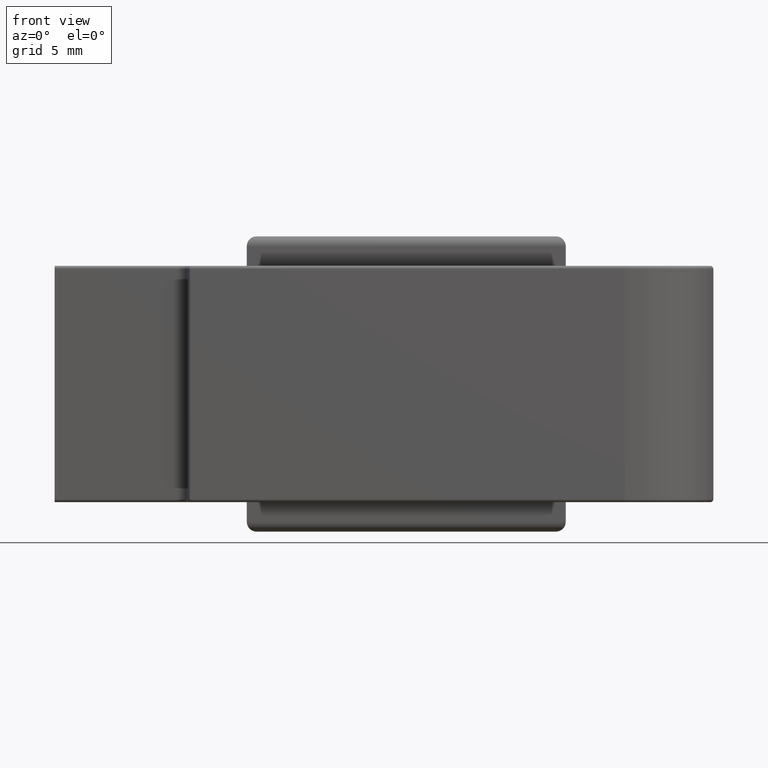
[diagram: clean part render]
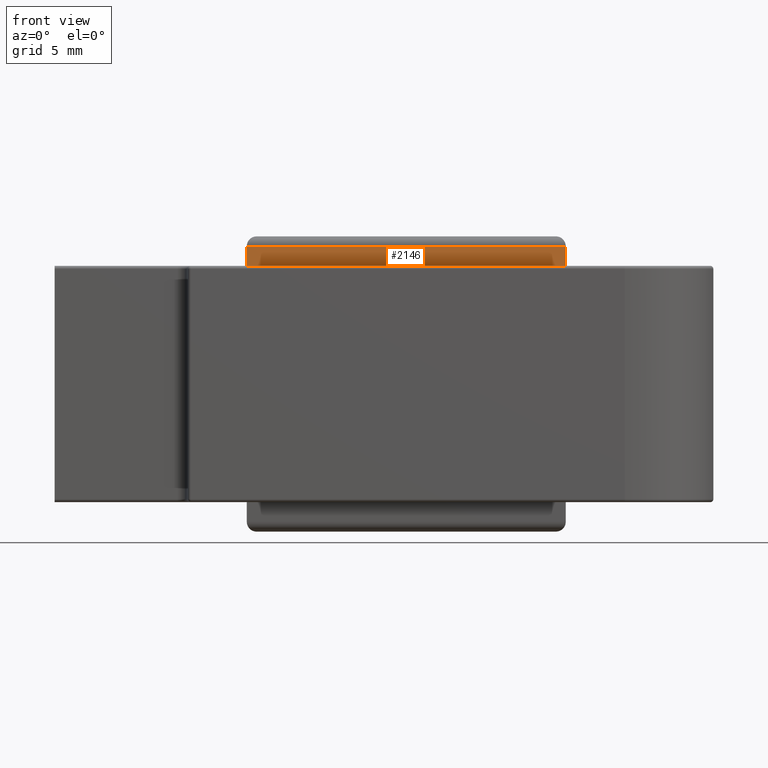
[diagram: same view with one face highlighted and labeled with its STEP entity id]
A machine part, front view. The second image highlights one B-rep face of the part: STEP entity #2146.
In plain terms, the highlighted planar face has unit normal (-0, 1, -0).
Its self-contained STEP definition (entity closure, byte-faithful):
#90 = CARTESIAN_POINT ( 'NONE',  ( 3.000000000000004441, -2.899999999999999911, 12.00000000000003197 ) ) ;
#160 = PLANE ( 'NONE',  #747 ) ;
#165 = EDGE_LOOP ( 'NONE', ( #1683, #201, #1626, #849 ) ) ;
#185 = EDGE_CURVE ( 'NONE', #472, #1234, #1837, .T. ) ;
#201 = ORIENTED_EDGE ( 'NONE', *, *, #185, .T. ) ;
#320 = CARTESIAN_POINT ( 'NONE',  ( 3.000000000000004441, -2.899999999999999911, 13.50000000000003197 ) ) ;
#426 = LINE ( 'NONE', #1051, #1920 ) ;
#472 = VERTEX_POINT ( 'NONE', #1013 ) ;
#542 = DIRECTION ( 'NONE',  ( 1.000000000000000000, 2.298859303523532316E-32, 0.000000000000000000 ) ) ;
#570 = VECTOR ( 'NONE', #2200, 1000.000000000000000 ) ;
#590 = DIRECTION ( 'NONE',  ( -1.000000000000000000, -2.298859303523532316E-32, -0.000000000000000000 ) ) ;
#680 = LINE ( 'NONE', #2009, #908 ) ;
#747 = AXIS2_PLACEMENT_3D ( 'NONE', #2026, #1849, #823 ) ;
#823 = DIRECTION ( 'NONE',  ( 0.000000000000000000, 6.162975822039132834E-33, 1.000000000000000000 ) ) ;
#849 = ORIENTED_EDGE ( 'NONE', *, *, #1146, .T. ) ;
#908 = VECTOR ( 'NONE', #2194, 1000.000000000000000 ) ;
#920 = CARTESIAN_POINT ( 'NONE',  ( 3.000000000000004441, -2.899999999999999911, 13.00000000000003197 ) ) ;
#935 = EDGE_CURVE ( 'NONE', #472, #1360, #680, .T. ) ;
#1013 = CARTESIAN_POINT ( 'NONE',  ( 19.20000000000003126, -2.899999999999999911, 13.00000000000001066 ) ) ;
#1051 = CARTESIAN_POINT ( 'NONE',  ( -2.428612866367529932E-14, -2.899999999999999911, 12.00000000000003197 ) ) ;
#1146 = EDGE_CURVE ( 'NONE', #1264, #1360, #426, .T. ) ;
#1234 = VERTEX_POINT ( 'NONE', #920 ) ;
#1264 = VERTEX_POINT ( 'NONE', #90 ) ;
#1360 = VERTEX_POINT ( 'NONE', #1461 ) ;
#1461 = CARTESIAN_POINT ( 'NONE',  ( 19.20000000000003126, -2.899999999999999911, 12.00000000000001066 ) ) ;
#1467 = EDGE_CURVE ( 'NONE', #1234, #1264, #1916, .T. ) ;
#1626 = ORIENTED_EDGE ( 'NONE', *, *, #1467, .T. ) ;
#1683 = ORIENTED_EDGE ( 'NONE', *, *, #935, .F. ) ;
#1803 = FACE_OUTER_BOUND ( 'NONE', #165, .T. ) ;
#1837 = LINE ( 'NONE', #2120, #2095 ) ;
#1849 = DIRECTION ( 'NONE',  ( -1.663310252921208862E-33, 1.000000000000000000, -6.162975822039132834E-33 ) ) ;
#1916 = LINE ( 'NONE', #320, #570 ) ;
#1920 = VECTOR ( 'NONE', #542, 1000.000000000000000 ) ;
#2009 = CARTESIAN_POINT ( 'NONE',  ( 19.20000000000003126, -2.899999999999999911, 13.50000000000001243 ) ) ;
#2026 = CARTESIAN_POINT ( 'NONE',  ( -2.428612866367529932E-14, -2.899999999999999911, 13.50000000000003197 ) ) ;
#2095 = VECTOR ( 'NONE', #590, 1000.000000000000000 ) ;
#2120 = CARTESIAN_POINT ( 'NONE',  ( 3.000000000000004441, -2.899999999999999911, 13.00000000000003197 ) ) ;
#2146 = ADVANCED_FACE ( 'NONE', ( #1803 ), #160, .F. ) ;
#2194 = DIRECTION ( 'NONE',  ( 0.000000000000000000, -6.162975822039132834E-33, -1.000000000000000000 ) ) ;
#2200 = DIRECTION ( 'NONE',  ( 0.000000000000000000, -6.162975822039132834E-33, -1.000000000000000000 ) ) ;